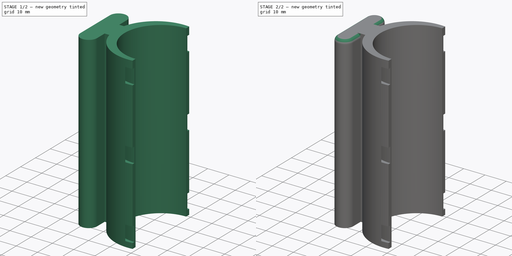
[diagram: build sequence overview — one tinted view per stage of 2, left to right]
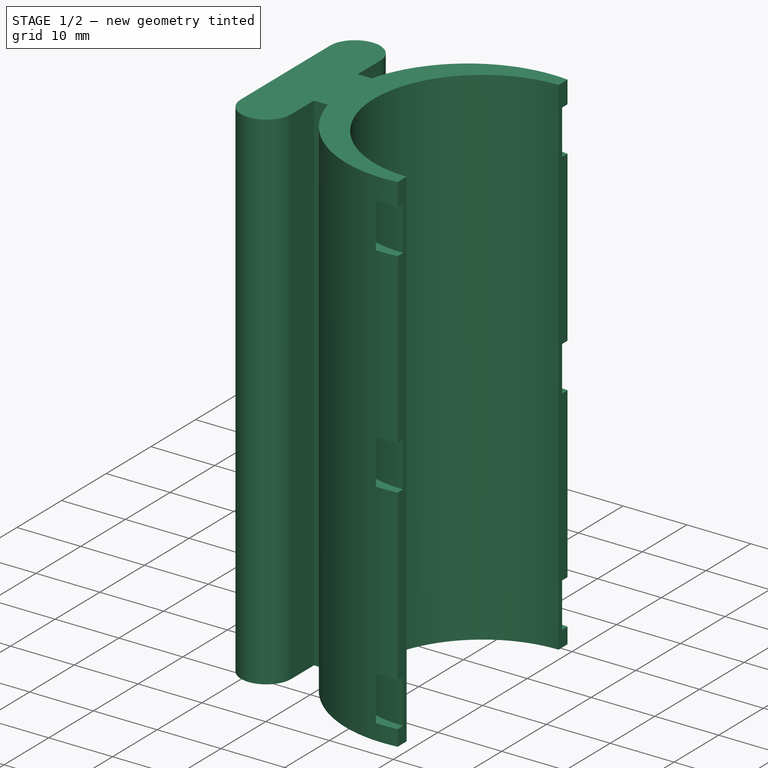
[diagram: stage 1 of 2 — iso view after this stage's code; geometry added in this stage tinted green]
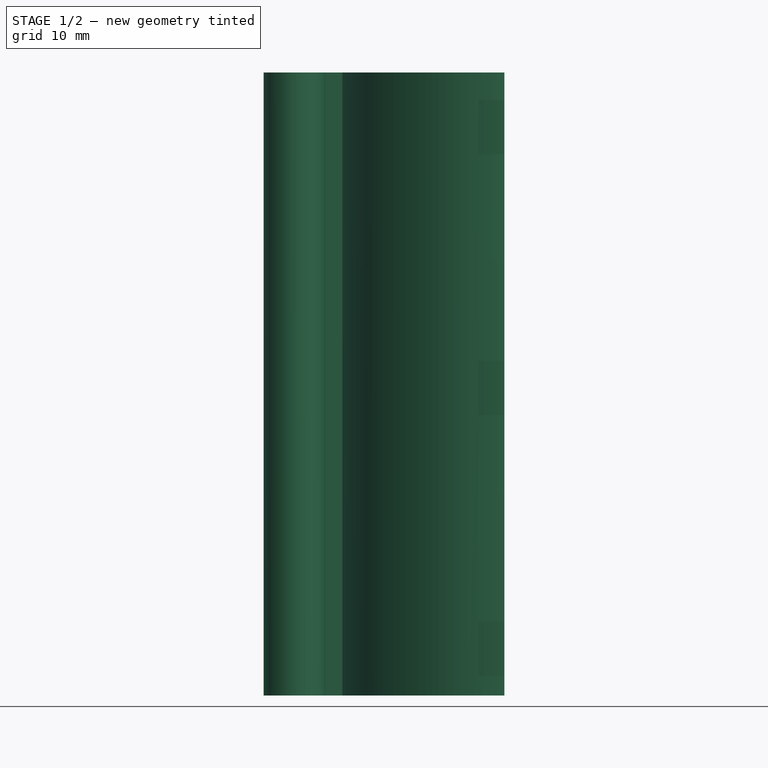
[diagram: stage 1 of 2 — front view after this stage's code; geometry added in this stage tinted green]
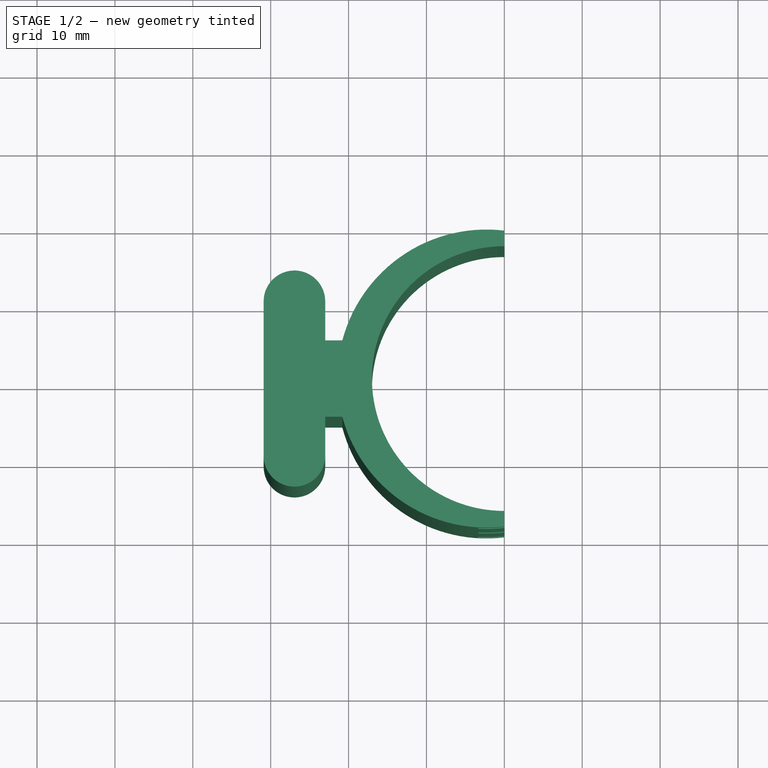
[diagram: stage 1 of 2 — top view after this stage's code; geometry added in this stage tinted green]
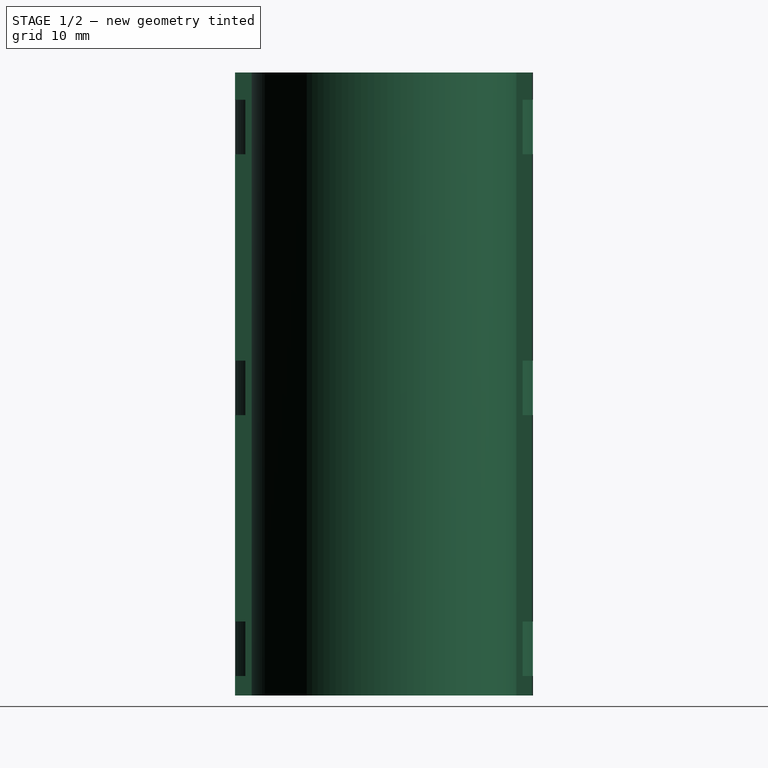
[diagram: stage 1 of 2 — right view after this stage's code; geometry added in this stage tinted green]
FCSTD DOCUMENT  (FreeCAD 1.1R20260414 (Git shallow))
Label: mast-dock
License: All rights reserved
LicenseURL: https://en.wikipedia.org/wiki/All_rights_reserved
objects: Sketcher::SketchObject×3, App::VarSet×1, PartDesign::Pad×1, PartDesign::Groove×1, PartDesign::Hole×1, PartDesign::Fillet×1, App::Point×1, PartDesign::Body×1
note: 19 computed .brp shape members not serialized (recipe doc carries the construction recipe); baked Part::Feature solids carry a one-line shape summary decoded from their .brp

FEATURE [App::VarSet] VarSet  label="Set dimensions"
  mast_dia = 34
FEATURE [Sketcher::SketchObject] Sketch213
  ArcFitTolerance = 1e-06
  AttachmentSupport = -> [XZ_Plane030]
  ExternalTypes = [0]
  FullyConstrained = true
  MakeInternals = false
  MapMode = 5
  Placement = pos=(0,0,0) rot=(1,0,0;1.5708rad)
  _ExternalGeoVersion = 0
  expr: Constraints[25] = VarSet.mast_dia / 2 + 1.6 mm
  sketch-geometry (18):
    g0: LineSegment StartX=-19.4 StartY=9.5 StartZ=0 EndX=-19.4 EndY=2.5 EndZ=0
    g1: LineSegment StartX=-19.4 StartY=2.5 StartZ=0 EndX=-17.8 EndY=2.5 EndZ=0
    g2: LineSegment StartX=-17.8 StartY=2.5 StartZ=0 EndX=-17.8 EndY=9.5 EndZ=0
    g3: LineSegment StartX=-17.8 StartY=9.5 StartZ=0 EndX=-19.4 EndY=9.5 EndZ=0
    g4: GeomPoint [constr] X=-18.6 Y=6 Z=0
    g5: LineSegment StartX=-19.4 StartY=76.5 StartZ=0 EndX=-19.4 EndY=69.5 EndZ=0
    g6: LineSegment StartX=-19.4 StartY=69.5 StartZ=0 EndX=-17.8 EndY=69.5 EndZ=0
    g7: LineSegment StartX=-17.8 StartY=69.5 StartZ=0 EndX=-17.8 EndY=76.5 EndZ=0
    g8: LineSegment StartX=-17.8 StartY=76.5 StartZ=0 EndX=-19.4 EndY=76.5 EndZ=0
    g9: GeomPoint [constr] X=-18.6 Y=73 Z=0
    g10: LineSegment [constr] StartX=-18.6 StartY=73 StartZ=0 EndX=0 EndY=73 EndZ=0
    g11: LineSegment [constr] StartX=-18.6 StartY=6 StartZ=0 EndX=0 EndY=6 EndZ=0
    g12: LineSegment StartX=-19.4 StartY=36 StartZ=0 EndX=-17.8 EndY=36 EndZ=0
    g13: LineSegment StartX=-17.8 StartY=36 StartZ=0 EndX=-17.8 EndY=43 EndZ=0
    g14: LineSegment StartX=-17.8 StartY=43 StartZ=0 EndX=-19.4 EndY=43 EndZ=0
    g15: LineSegment StartX=-19.4 StartY=43 StartZ=0 EndX=-19.4 EndY=36 EndZ=0
    g16: GeomPoint [constr] X=-18.6 Y=39.5 Z=0
    g17: LineSegment [constr] StartX=-18.6 StartY=39.5 StartZ=0 EndX=0 EndY=39.5 EndZ=0
  constraints (47):
    c: Coincident(g0,g1)
    c: Coincident(g1,g2)
    c: Coincident(g2,g3)
    c: Coincident(g3,g0)
    c: Vertical(g0)
    c: Vertical(g2)
    c: Horizontal(g1)
    c: Horizontal(g3)
    c: Symmetric(g2,g0,g4)
    c: Coincident(g5,g6)
    c: Coincident(g6,g7)
    c: Coincident(g7,g8)
    c: Coincident(g8,g5)
    c: Vertical(g5)
    c: Vertical(g7)
    c: Horizontal(g6)
    c: Horizontal(g8)
    c: Symmetric(g7,g5,g9)
    c: Distance(g8,g8) = 1.6
    c: DistanceY(g7,g7) = 7
    c: Equal(g5,g0)
    c: Equal(g8,g3)
    c: Coincident(g10,g9)
    c: PointOnObject(g10,g-2)
    c: Horizontal(g10)
    c: DistanceX(g10,g10) = 18.6
    c: Coincident(g11,g4)
    c: Horizontal(g11)
    c: Equal(g11,g10)
    c: PointOnObject(g11,g-2)
    c: Distance(g4,g-1) = 6
    c: DistanceY(g-1,g9) = 73
    c: Coincident(g12,g13)
    c: Coincident(g13,g14)
    c: Coincident(g14,g15)
    c: Coincident(g15,g12)
    c: Horizontal(g12)
    c: Horizontal(g14)
    c: Vertical(g13)
    c: Vertical(g15)
    c: Symmetric(g14,g12,g16)
    c: Coincident(g17,g16)
    c: Horizontal(g17)
    c: Equal(g10,g17)
    c: Equal(g5,g15)
    c: Equal(g14,g6)
    c: Symmetric(g10,g11,g17)
FEATURE [Sketcher::SketchObject] Sketch212
  ArcFitTolerance = 1e-06
  AttachmentSupport = -> [XY_Plane031]
  ExternalTypes = [0]
  FullyConstrained = true
  MakeInternals = false
  MapMode = 5
  _ExternalGeoVersion = 0
  expr: Constraints[49] = VarSet.mast_dia
  sketch-geometry (18):
    g0: LineSegment StartX=-20.8 StartY=4.9 StartZ=0 EndX=-23 EndY=4.9 EndZ=0
    g1: LineSegment [constr] StartX=-30.9 StartY=-9.925 StartZ=0 EndX=-23 EndY=-9.925 EndZ=0
    g2: LineSegment StartX=-23 StartY=-9.925 StartZ=0 EndX=-23 EndY=-4.9 EndZ=0
    g3: LineSegment StartX=-23 StartY=-4.9 StartZ=0 EndX=-20.8 EndY=-4.9 EndZ=0
    g4: LineSegment StartX=-30.9 StartY=9.925 StartZ=0 EndX=-30.9 EndY=0 EndZ=0
    g5: LineSegment StartX=-30.9 StartY=0 StartZ=0 EndX=-30.9 EndY=-9.925 EndZ=0
    g6: ArcOfCircle CenterX=-26.95 CenterY=9.925 CenterZ=0 NormalX=0 NormalY=0 NormalZ=1 AngleXU=0 Radius=3.95 StartAngle=-9e-16 EndAngle=3.14159
    g7: ArcOfCircle CenterX=-26.95 CenterY=-9.925 CenterZ=0 NormalX=0 NormalY=0 NormalZ=1 AngleXU=0 Radius=3.95 StartAngle=3.14159 EndAngle=6.28319
    g8: ArcOfCircle CenterX=-2.29928 CenterY=0 CenterZ=0 NormalX=0 NormalY=0 NormalZ=1 AngleXU=0 Radius=19.1386 StartAngle=1.45037 EndAngle=2.88268
    g9: ArcOfCircle CenterX=-2.29928 CenterY=0 CenterZ=0 NormalX=0 NormalY=0 NormalZ=1 AngleXU=0 Radius=19.1386 StartAngle=3.4005 EndAngle=4.83282
    g10: LineSegment [constr] StartX=-2.29928 StartY=0 StartZ=0 EndX=0 EndY=0 EndZ=0
    g11: LineSegment StartX=0 StartY=17 StartZ=0 EndX=0 EndY=19 EndZ=0
    g12: LineSegment StartX=-3.1e-15 StartY=-17 StartZ=0 EndX=-3.1e-15 EndY=-19 EndZ=0
    g13: ArcOfCircle CenterX=0 CenterY=0 CenterZ=0 NormalX=0 NormalY=0 NormalZ=1 AngleXU=0 Radius=17 StartAngle=1.5708 EndAngle=4.71239
    g14: LineSegment StartX=-23 StartY=4.9 StartZ=0 EndX=-23 EndY=9.925 EndZ=0
    g15: LineSegment [constr] StartX=-23 StartY=4.9 StartZ=0 EndX=-23 EndY=0 EndZ=0
    g16: LineSegment [constr] StartX=-23 StartY=0 StartZ=0 EndX=-23 EndY=-4.9 EndZ=0
    g17: LineSegment [constr] StartX=-30.9 StartY=9.925 StartZ=0 EndX=-23 EndY=9.925 EndZ=0
  constraints (53):
    c: Horizontal(g0)
    c: Horizontal(g1)
    c: Vertical(g2)
    c: Coincident(g3,g2)
    c: Horizontal(g3)
    c: PointOnObject(g4,g-1)
    c: Vertical(g4)
    c: Coincident(g5,g4)
    c: Coincident(g5,g1)
    c: Vertical(g5)
    c: DistanceY(g7,g4) = 19.85
    c: Equal(g3,g0)
    c: DistanceX(g0,g0) = 2.2
    c: Coincident(g7,g1)
    c: Coincident(g7,g1)
    c: Equal(g4,g5)
    c: DistanceY(g2,g0) = 9.8
    c: PointOnObject(g8,g-1)
    c: Coincident(g8,g0)
    c: Coincident(g9,g8)
    c: Coincident(g9,g3)
    c: Coincident(g10,g8)
    c: Coincident(g11,g8)
    c: Coincident(g12,g9)
    c: Coincident(g13,g10)
    c: Coincident(g13,g11)
    c: Coincident(g13,g12)
    c: PointOnObject(g7,g1)
    c: Coincident(g14,g0)
    c: Coincident(g14,g6)
    c: Vertical(g14)
    c: Coincident(g15,g0)
    c: PointOnObject(g15,g-1)
    c: Vertical(g15)
    c: Coincident(g16,g15)
    c: Coincident(g16,g2)
    c: Equal(g15,g16)
    c: Coincident(g10,g-1)
    c: Coincident(g2,g1)
    c: Coincident(g6,g4)
    c: Coincident(g17,g4)
    c: Coincident(g17,g6)
    c: PointOnObject(g6,g17)
    c: Horizontal(g17)
    c: DistanceX(g17,g17) = 7.9
    c: Vertical(g16)
    c: Vertical(g12)
    c: PointOnObject(g8,g-2)
    c: PointOnObject(g11,g-2)
    c: Diameter(g13) = 34
    c: DistanceY(g11,g11) = 2
    c: PointOnObject(g12,g-2)
    c: Distance(g15,g13) = 6
FEATURE [PartDesign::Pad] Pad013
  Direction = (0,0,1)
  Length = 80
  Length2 = 10
  Profile = -> Sketch212
  ReferenceAxis = -> Sketch212 [N_Axis]
  SideType = 0
  Suppressed = false
  Type = 0
  Type2 = 0
FEATURE [PartDesign::Groove] Groove003
  Angle = 360
  Angle2 = 60
  Axis = (0,2e-16,1)
  Base = (0,0,0)
  BaseFeature = -> Pad013
  Profile = -> Sketch213
  ReferenceAxis = -> Sketch213 [V_Axis]
  Reversed = true
  Suppressed = false
  Type = 0
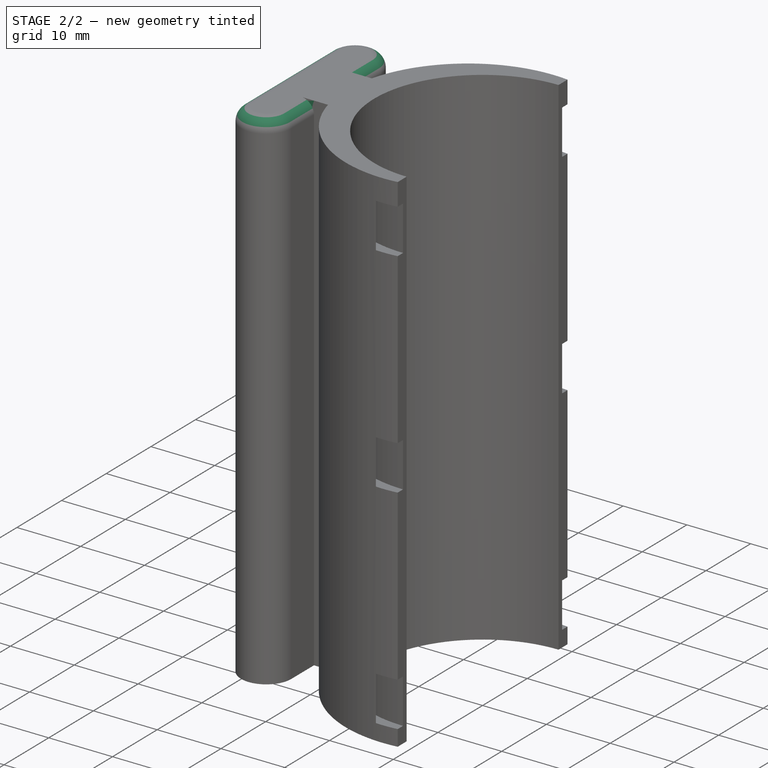
[diagram: stage 2 of 2 — iso view after this stage's code; geometry added in this stage tinted green]
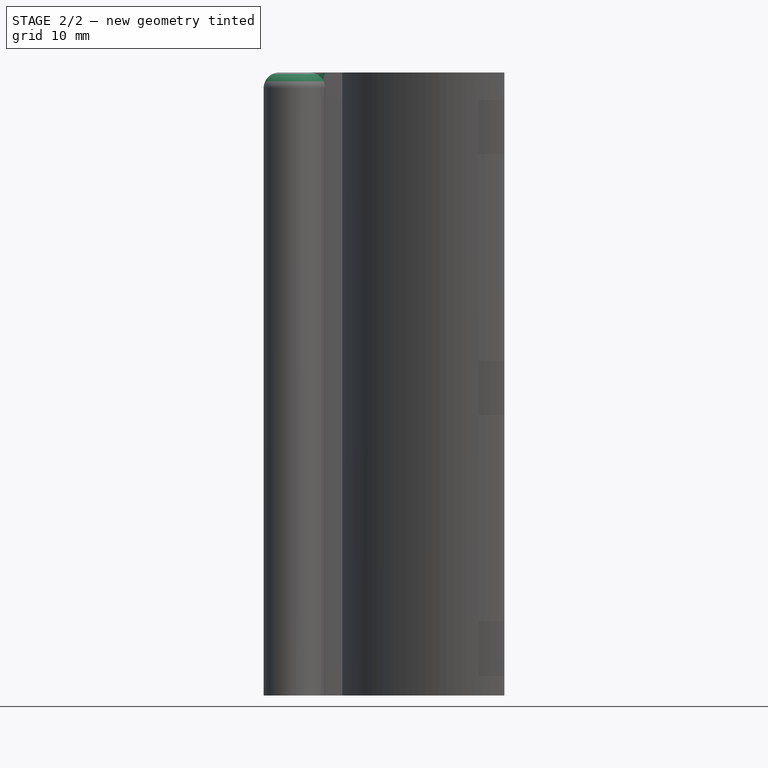
[diagram: stage 2 of 2 — front view after this stage's code; geometry added in this stage tinted green]
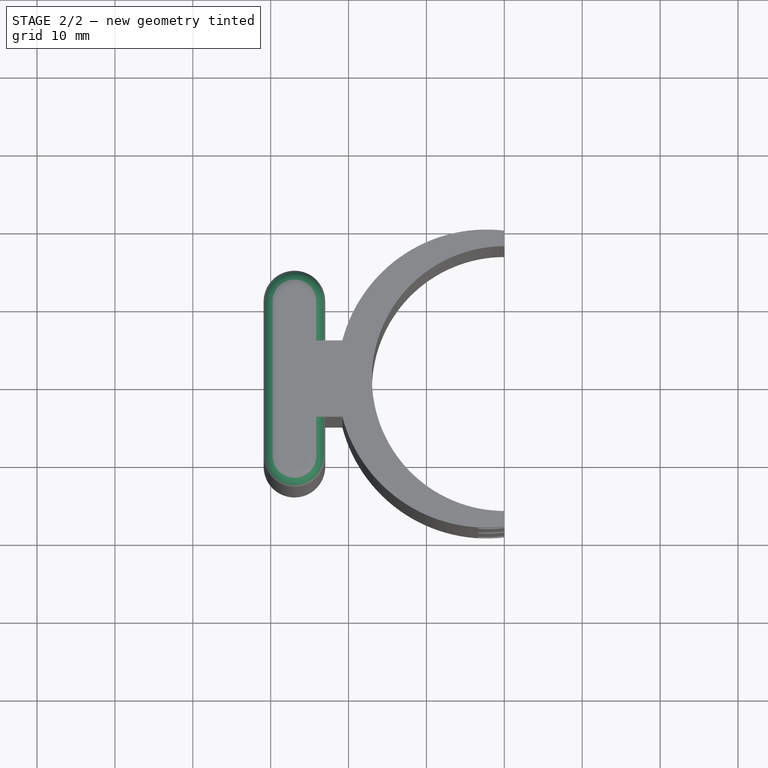
[diagram: stage 2 of 2 — top view after this stage's code; geometry added in this stage tinted green]
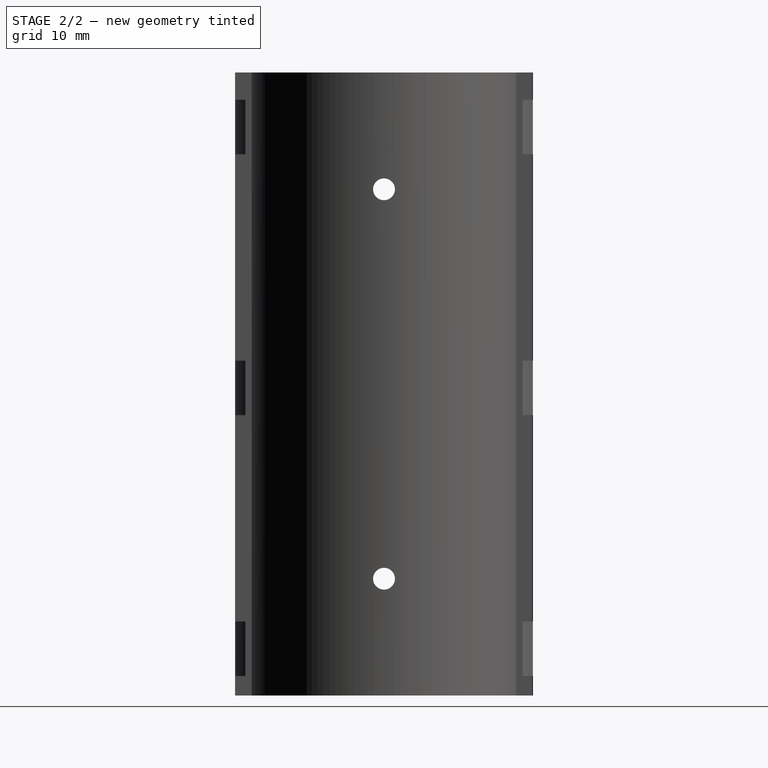
[diagram: stage 2 of 2 — right view after this stage's code; geometry added in this stage tinted green]
FEATURE [Sketcher::SketchObject] Sketch214
  ArcFitTolerance = 1e-06
  AttachmentSupport = -> [Groove003]
  ExternalTypes = [0]
  FullyConstrained = false
  MakeInternals = false
  MapMode = 5
  Placement = pos=(-30.9,0,0) rot=(0.57735,-0.57735,-0.57735;2.0944rad)
  _ExternalGeoVersion = 0
  sketch-geometry (2):
    g0: Circle CenterX=0 CenterY=15 CenterZ=0 NormalX=0 NormalY=0 NormalZ=1 AngleXU=0 Radius=1.78731
    g1: Circle CenterX=0 CenterY=65 CenterZ=0 NormalX=0 NormalY=0 NormalZ=1 AngleXU=0 Radius=1.78731
  constraints (5):
    c: PointOnObject(g0,g-2)
    c: Distance(g0,g-1) = 15
    c: PointOnObject(g1,g-2)
    c: Equal(g0,g1)
    c: Distance(g1,g-1) = 65
FEATURE [PartDesign::Hole] Hole001
  BaseFeature = -> Groove003
  BaseProfileType = 6
  CustomThreadClearance = 0
  Depth = 25
  DepthType = 0
  Diameter = 2.8
  DrillForDepth = false
  DrillPoint = 1
  DrillPointAngle = 118
  HoleCutCountersinkAngle = 90
  HoleCutCustomValues = false
  HoleCutDepth = 5
  HoleCutDiameter = 7.5
  HoleCutType = 1
  ModelThread = false
  Profile = -> Sketch214
  Suppressed = false
  Tapered = false
  TaperedAngle = 90
  ThreadClass = 0
  ThreadDepth = 25
  ThreadDepthType = 0
  ThreadDiameter = 2.8
  ThreadDirection = 0
  ThreadFit = 0
  ThreadSize = 0
  ThreadType = 0
  Threaded = false
  UseCustomThreadClearance = false
FEATURE [PartDesign::Fillet] Fillet002
  Base = -> Hole001 [Edge84,Edge85,Edge83,Edge82,Edge81,Edge80]
  BaseFeature = -> Hole001
  Radius = 2
  SupportTransform = false
  Suppressed = false
  UseAllEdges = false
FEATURE [App::Point] Origin033  label="Origin"
  Role = Origin
FEATURE [PartDesign::Body] Body023  label="3-mast-dock"
  AllowCompound = false
  Group = -> [Sketch212,Pad013,Sketch213,Groove003,Sketch214,Hole001,Fillet002,VarSet]
  Origin = -> Origin030
  Tip = -> Fillet002
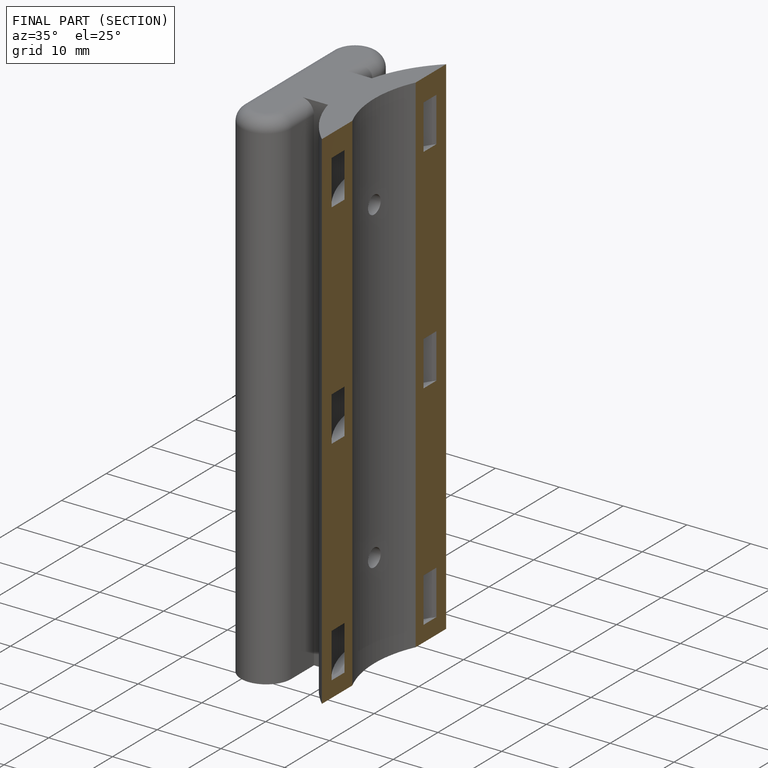
[diagram: finished part — half-section view (interior)]
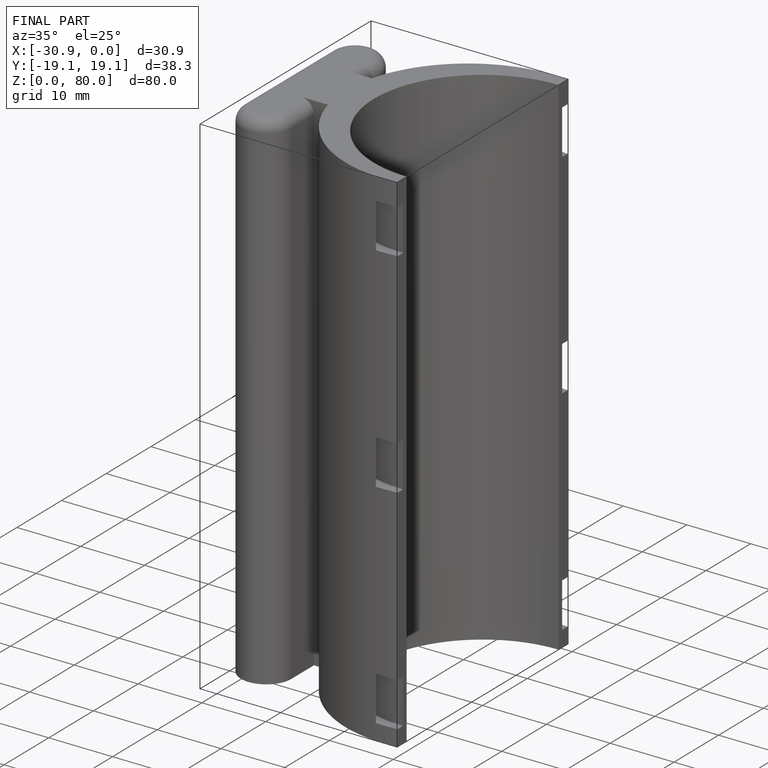
[diagram: finished part — iso view with bounding-box wireframe]
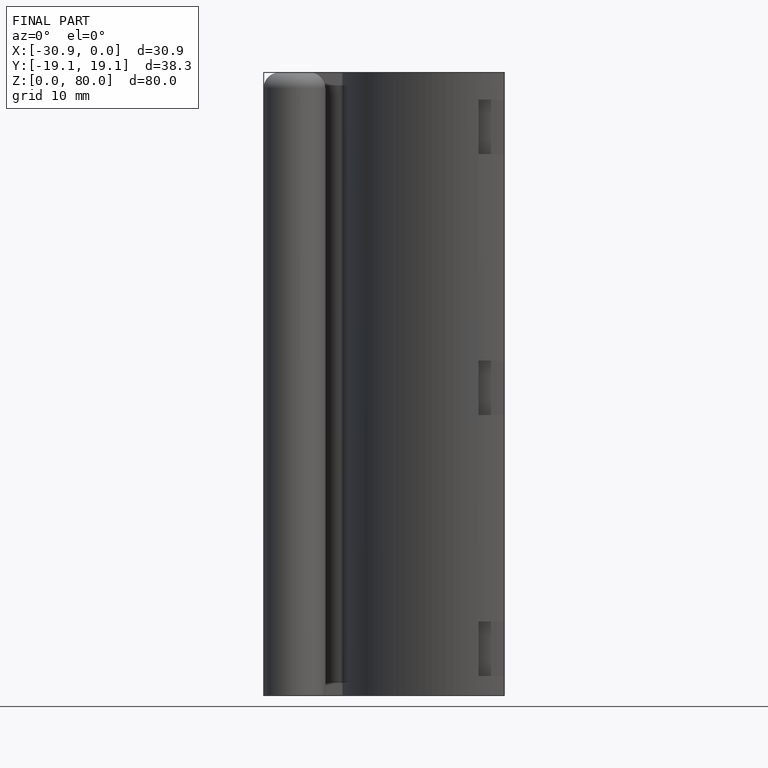
[diagram: finished part — front view with bounding-box wireframe]
